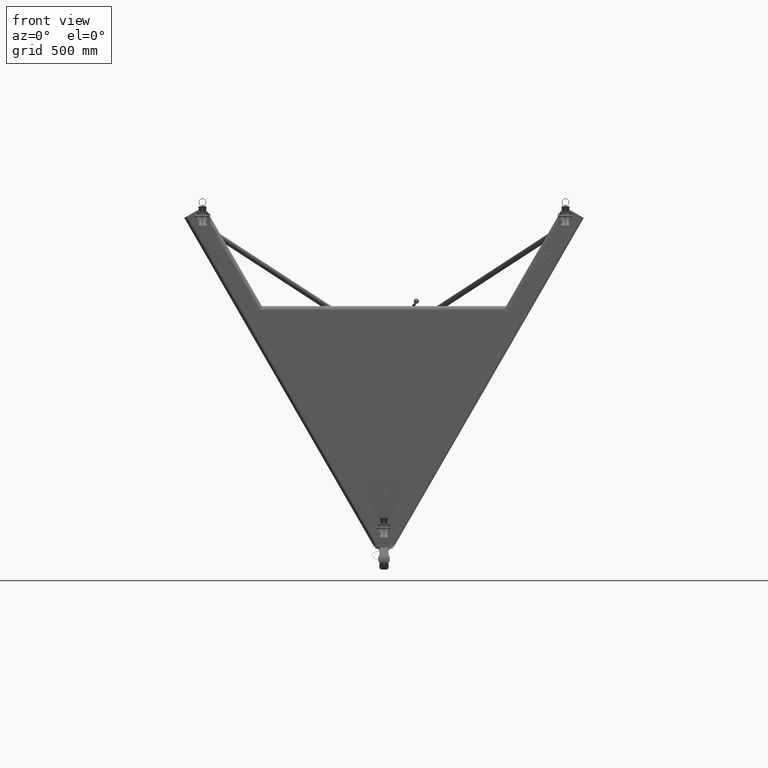
[diagram: clean part render]
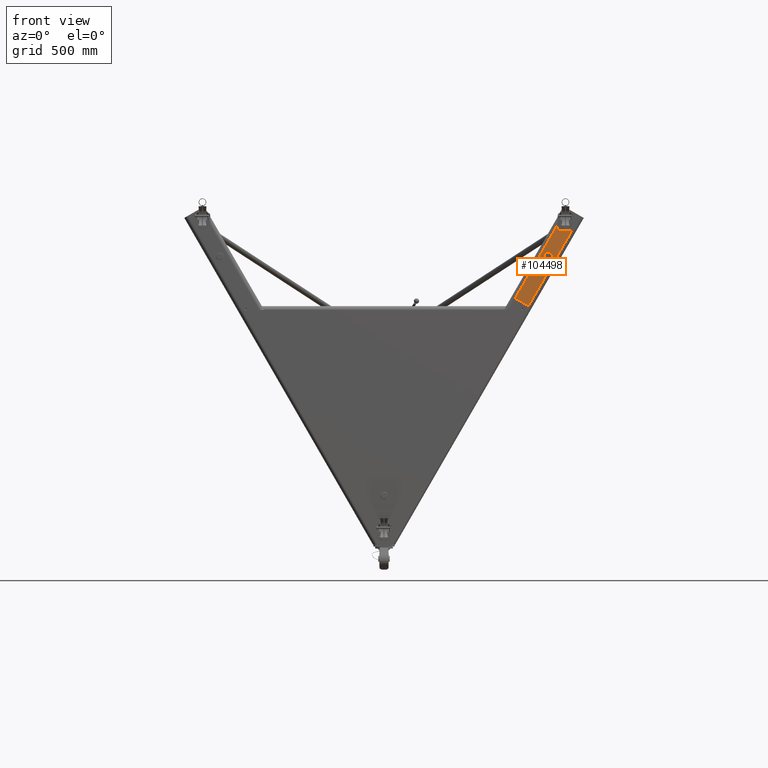
[diagram: same view with one face highlighted and labeled with its STEP entity id]
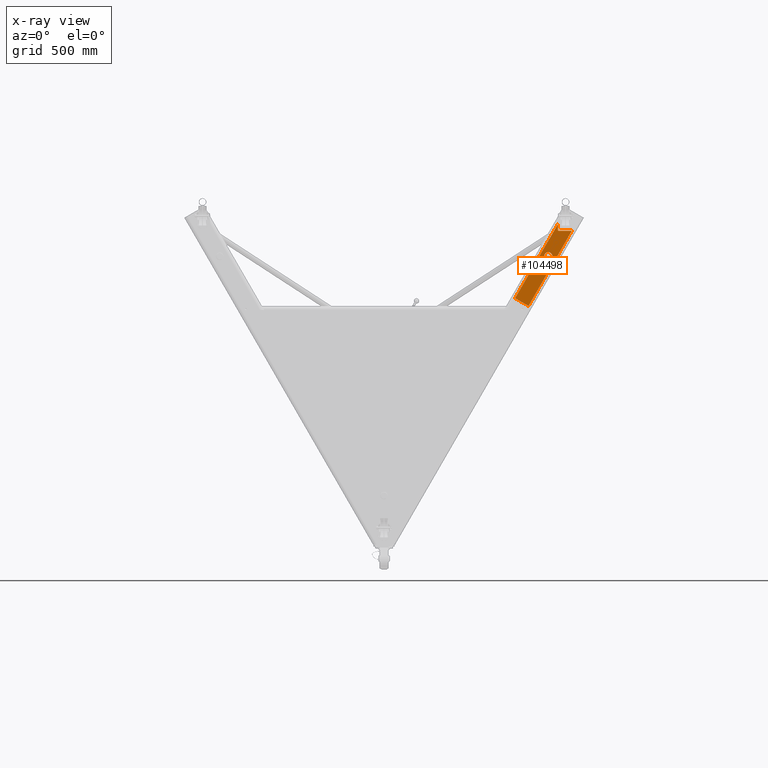
[diagram: x-ray of the same camera — body ghosted, the highlighted face saturated]
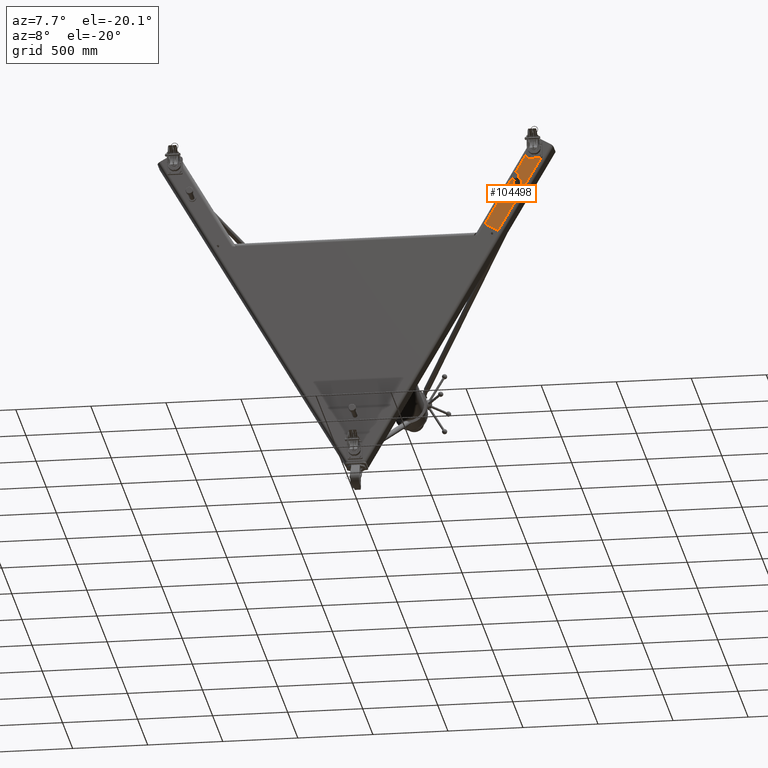
[diagram: same view with one face highlighted and labeled with its STEP entity id]
A machine part, front view. The second image highlights one B-rep face of the part: STEP entity #104498.
The next image is the same camera in x-ray: the body ghosted, the highlighted face saturated — about 0% of this face is hidden behind the body in this view.
A second angle (auxiliary view) of the same face is appended — the face is thin or edge-on in the first view.
In plain terms, the highlighted planar face has unit normal (-0, 1, -0).
Its self-contained STEP definition (entity closure, byte-faithful):
#2010 = CARTESIAN_POINT ( 'NONE',  ( 45.17948729810750308, -3.000000000000003109, 22.57273214641441683 ) ) ;
#3952 = CIRCLE ( 'NONE', #86034, 1.062500000000000000 ) ;
#5623 = FACE_OUTER_BOUND ( 'NONE', #10081, .T. ) ;
#5873 = ORIENTED_EDGE ( 'NONE', *, *, #66306, .T. ) ;
#7541 = CARTESIAN_POINT ( 'NONE',  ( 34.08493649053875885, -3.000000000000003553, 5.044228634059703786 ) ) ;
#10081 = EDGE_LOOP ( 'NONE', ( #42134, #5873, #66788, #127709, #31843, #139970 ) ) ;
#13858 = CARTESIAN_POINT ( 'NONE',  ( 45.42948729810751729, -3.000000000000003109, 22.82273214641441683 ) ) ;
#17526 = VECTOR ( 'NONE', #131707, 39.37007874015748854 ) ;
#19286 = LINE ( 'NONE', #7541, #136543 ) ;
#20079 = EDGE_CURVE ( 'Defeatured_1518+Defeatured_151600+Defeatured_151602+Defeatured_15198', #125395, #133465, #82472, .T. ) ;
#22220 = CARTESIAN_POINT ( 'NONE',  ( 51.04903810567645905, -2.999999999999999556, 26.42691453623952214 ) ) ;
#24791 = DIRECTION ( 'NONE',  ( -3.928693798901267754E-17, 1.000000000000000000, -2.896454839196774802E-16 ) ) ;
#25606 = DIRECTION ( 'NONE',  ( 0.0000000000000000000, 0.0000000000000000000, -1.000000000000000000 ) ) ;
#29648 = AXIS2_PLACEMENT_3D ( 'NONE', #49717, #24791, #139323 ) ;
#31843 = ORIENTED_EDGE ( 'NONE', *, *, #72150, .F. ) ;
#34741 = AXIS2_PLACEMENT_3D ( 'NONE', #13858, #58665, #25606 ) ;
#35725 = DIRECTION ( 'NONE',  ( 3.928693798901265905E-17, -1.000000000000000000, 2.896454839196774802E-16 ) ) ;
#36249 = CARTESIAN_POINT ( 'NONE',  ( 34.08493649053875174, -3.000000000000007550, 5.044228634059632732 ) ) ;
#38289 = CARTESIAN_POINT ( 'NONE',  ( 48.82382486540501532, -3.000000000000000888, 22.57273214641439907 ) ) ;
#42134 = ORIENTED_EDGE ( 'NONE', *, *, #51971, .T. ) ;
#42575 = AXIS2_PLACEMENT_3D ( 'NONE', #72882, #129470, #97841 ) ;
#45233 = VERTEX_POINT ( 'NONE', #38289 ) ;
#45367 = DIRECTION ( 'NONE',  ( -1.000000000000000000, -4.226973137342600911E-16, 3.608224830031757968E-15 ) ) ;
#46061 = VERTEX_POINT ( 'NONE', #76229 ) ;
#49717 = CARTESIAN_POINT ( 'NONE',  ( 47.58493649053869490, -3.000000000000000444, 28.42691453623951148 ) ) ;
#50453 = PLANE ( 'NONE',  #29648 ) ;
#51319 = EDGE_CURVE ( 'Defeatured_151205+Defeatured_1518+Defeatured_1518+Defeatured_1518', #144242, #128040, #3952, .T. ) ;
#51971 = EDGE_CURVE ( 'Defeatured_1518+Defeatured_151599+Defeatured_15199+Defeatured_151602', #45233, #138252, #68821, .T. ) ;
#52357 = DIRECTION ( 'NONE',  ( -0.8660254037844397068, -4.469158686454240891E-16, 0.4999999999999980016 ) ) ;
#58665 = DIRECTION ( 'NONE',  ( -4.226973137342601404E-16, 1.000000000000000000, -3.213234995326260190E-16 ) ) ;
#62784 = VECTOR ( 'NONE', #45367, 39.37007874015748143 ) ;
#66306 = EDGE_CURVE ( 'Defeatured_1518+Defeatured_151602+Defeatured_151599+Defeatured_151600', #138252, #125395, #98058, .T. ) ;
#66788 = ORIENTED_EDGE ( 'NONE', *, *, #20079, .T. ) ;
#68821 = LINE ( 'NONE', #2010, #62784 ) ;
#72150 = EDGE_CURVE ( 'Defeatured_15130+Defeatured_1518+Defeatured_15146+Defeatured_15147', #46061, #129453, #19286, .T. ) ;
#72882 = CARTESIAN_POINT ( 'NONE',  ( 42.69198729810757698, -3.000000000000003553, 15.95207793609570857 ) ) ;
#76229 = CARTESIAN_POINT ( 'NONE',  ( 37.54903810567651590, -3.000000000000006661, 3.044228634059642502 ) ) ;
#79776 = CARTESIAN_POINT ( 'NONE',  ( 42.69198729810757698, -3.000000000000003553, 15.95207793609570857 ) ) ;
#80832 = VECTOR ( 'NONE', #110379, 39.37007874015748854 ) ;
#82472 = LINE ( 'NONE', #92053, #129459 ) ;
#83356 = ORIENTED_EDGE ( 'NONE', *, *, #51319, .F. ) ;
#83474 = FACE_BOUND ( 'NONE', #106437, .T. ) ;
#85425 = CARTESIAN_POINT ( 'NONE',  ( 47.58493649053869490, -3.000000000000000444, 28.42691453623951148 ) ) ;
#86034 = AXIS2_PLACEMENT_3D ( 'NONE', #79776, #35725, #99832 ) ;
#87002 = CIRCLE ( 'NONE', #42575, 1.062500000000000000 ) ;
#91069 = ORIENTED_EDGE ( 'NONE', *, *, #129507, .F. ) ;
#92053 = CARTESIAN_POINT ( 'NONE',  ( 45.17948729810750308, -3.000000000000003109, 22.57273214641441683 ) ) ;
#97841 = DIRECTION ( 'NONE',  ( 0.0000000000000000000, 5.142302105720965594E-16, 1.000000000000000000 ) ) ;
#98058 = CIRCLE ( 'NONE', #34741, 0.2499999999999986955 ) ;
#98617 = LINE ( 'NONE', #85425, #17526 ) ;
#99832 = DIRECTION ( 'NONE',  ( 0.0000000000000000000, 5.142302105720965594E-16, 1.000000000000000000 ) ) ;
#103102 = DIRECTION ( 'NONE',  ( 3.608224830031757968E-15, 3.213234995326263148E-16, 1.000000000000000000 ) ) ;
#104498 = ADVANCED_FACE ( 'Defeatured_1518', ( #83474, #5623 ), #50453, .F. ) ;
#106437 = EDGE_LOOP ( 'NONE', ( #91069, #83356 ) ) ;
#109012 = CARTESIAN_POINT ( 'NONE',  ( 42.16073729810758408, -3.000000000000003997, 15.03192594457473952 ) ) ;
#110038 = CARTESIAN_POINT ( 'NONE',  ( 45.17948729810751018, -2.999999999999999556, 24.26055431992314837 ) ) ;
#110379 = DIRECTION ( 'NONE',  ( -0.4999999999999976685, -2.704838161603844273E-16, -0.8660254037844399289 ) ) ;
#119246 = CARTESIAN_POINT ( 'NONE',  ( 43.22323729810756987, -3.000000000000003109, 16.87222992761667584 ) ) ;
#122120 = LINE ( 'NONE', #22220, #80832 ) ;
#125395 = VERTEX_POINT ( 'NONE', #132357 ) ;
#127709 = ORIENTED_EDGE ( 'NONE', *, *, #143023, .T. ) ;
#128040 = VERTEX_POINT ( 'NONE', #109012 ) ;
#129453 = VERTEX_POINT ( 'NONE', #36249 ) ;
#129459 = VECTOR ( 'NONE', #103102, 39.37007874015748143 ) ;
#129470 = DIRECTION ( 'NONE',  ( 3.928693798901265905E-17, -1.000000000000000000, 2.896454839196774802E-16 ) ) ;
#129507 = EDGE_CURVE ( 'Defeatured_151205+Defeatured_1518+Defeatured_1518+Defeatured_1518', #128040, #144242, #87002, .T. ) ;
#131707 = DIRECTION ( 'NONE',  ( -0.4999999999999976685, -2.704838161603844273E-16, -0.8660254037844399289 ) ) ;
#132357 = CARTESIAN_POINT ( 'NONE',  ( 45.17948729810752440, -3.000000000000005773, 22.82273214641440617 ) ) ;
#133465 = VERTEX_POINT ( 'NONE', #110038 ) ;
#136543 = VECTOR ( 'NONE', #52357, 39.37007874015748143 ) ;
#138252 = VERTEX_POINT ( 'NONE', #145149 ) ;
#139323 = DIRECTION ( 'NONE',  ( -0.8660254037844399289, 1.107992556244490983E-16, 0.4999999999999976685 ) ) ;
#139970 = ORIENTED_EDGE ( 'NONE', *, *, #143303, .F. ) ;
#143023 = EDGE_CURVE ( 'Defeatured_1518+Defeatured_15198+Defeatured_151600+Defeatured_15130', #133465, #129453, #98617, .T. ) ;
#143303 = EDGE_CURVE ( 'Defeatured_15199+Defeatured_1518+Defeatured_151601+Defeatured_15146', #45233, #46061, #122120, .T. ) ;
#144242 = VERTEX_POINT ( 'NONE', #119246 ) ;
#145149 = CARTESIAN_POINT ( 'NONE',  ( 45.42948729810751729, -3.000000000000003109, 22.57273214641441683 ) ) ;